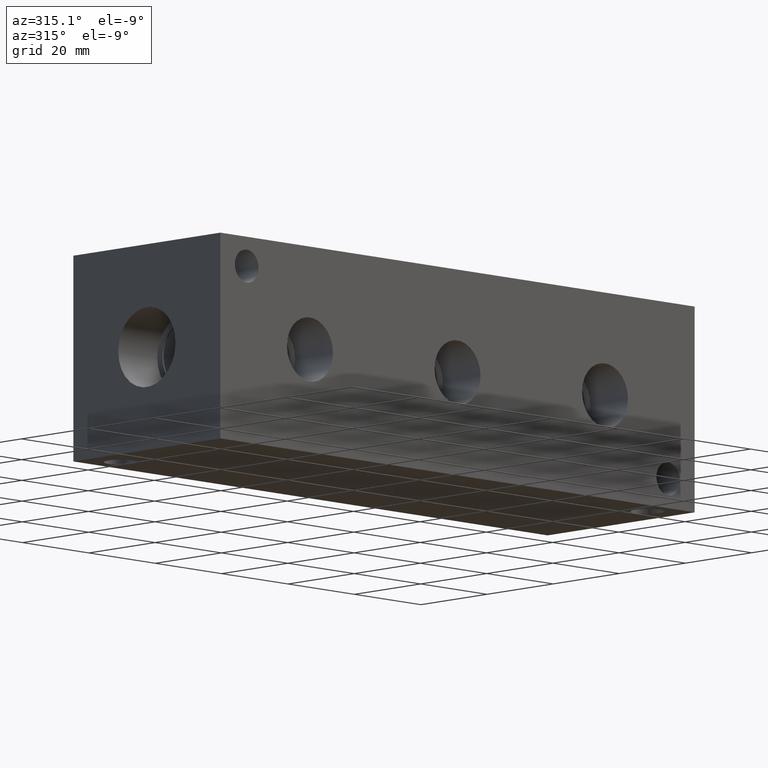
[diagram: clean part render]
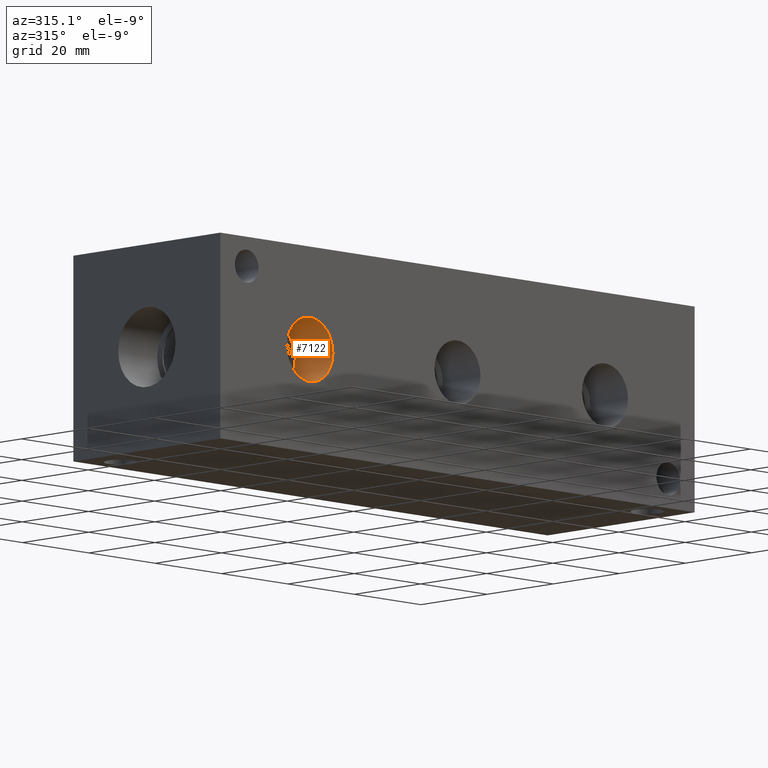
[diagram: same view with one face highlighted and labeled with its STEP entity id]
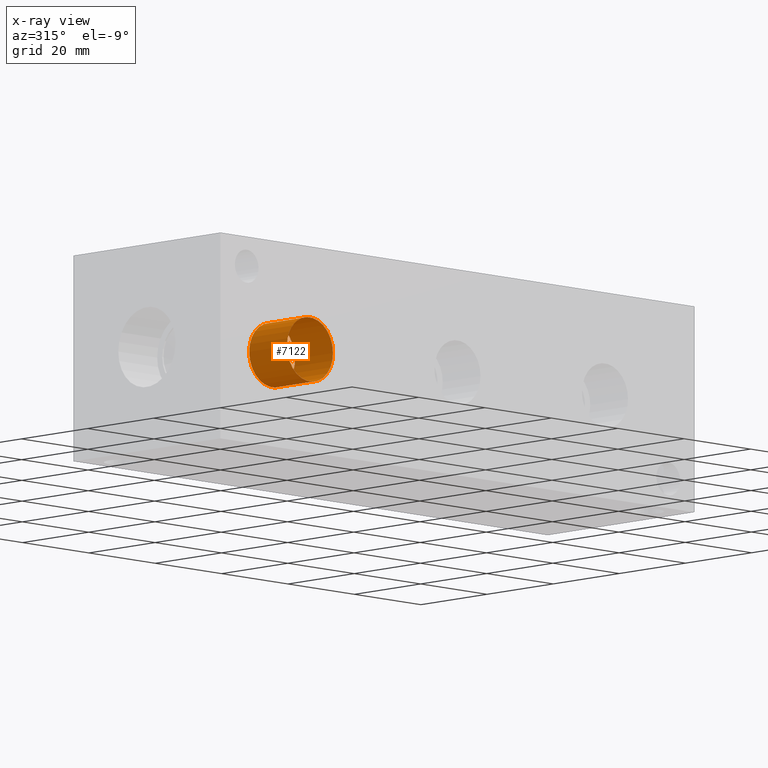
[diagram: x-ray of the same camera — body ghosted, the highlighted face saturated]
A machine part, auxiliary view. The second image highlights one B-rep face of the part: STEP entity #7122.
The next image is the same camera in x-ray: the body ghosted, the highlighted face saturated — about 0% of this face is hidden behind the body in this view.
In plain terms, the highlighted cylindrical surface (bore or boss wall) has radius 6.9342 mm, axis along (0, -1, 0).
Its self-contained STEP definition (entity closure, byte-faithful):
#24=CYLINDRICAL_SURFACE('',#7418,6.9342);
#73=CIRCLE('',#7415,6.9342);
#74=CIRCLE('',#7416,6.9342);
#76=CIRCLE('',#7419,6.9342);
#77=CIRCLE('',#7420,6.9342);
#725=FACE_OUTER_BOUND('',#1123,.T.);
#1123=EDGE_LOOP('',(#6187,#6188,#6189,#6190,#6191,#6192));
#1845=LINE('',#12034,#2546);
#2546=VECTOR('',#8669,6.9342);
#3385=VERTEX_POINT('',#12023);
#3386=VERTEX_POINT('',#12024);
#3388=VERTEX_POINT('',#12030);
#3389=VERTEX_POINT('',#12031);
#4336=EDGE_CURVE('',#3385,#3386,#73,.T.);
#4337=EDGE_CURVE('',#3386,#3385,#74,.T.);
#4339=EDGE_CURVE('',#3388,#3389,#76,.T.);
#4340=EDGE_CURVE('',#3389,#3388,#77,.T.);
#4341=EDGE_CURVE('',#3389,#3386,#1845,.T.);
#6187=ORIENTED_EDGE('',*,*,#4339,.F.);
#6188=ORIENTED_EDGE('',*,*,#4340,.F.);
#6189=ORIENTED_EDGE('',*,*,#4341,.T.);
#6190=ORIENTED_EDGE('',*,*,#4336,.F.);
#6191=ORIENTED_EDGE('',*,*,#4337,.F.);
#6192=ORIENTED_EDGE('',*,*,#4341,.F.);
#7122=ADVANCED_FACE('',(#725),#24,.F.);
#7415=AXIS2_PLACEMENT_3D('',#12025,#8657,#8658);
#7416=AXIS2_PLACEMENT_3D('',#12026,#8659,#8660);
#7418=AXIS2_PLACEMENT_3D('',#12029,#8663,#8664);
#7419=AXIS2_PLACEMENT_3D('',#12032,#8665,#8666);
#7420=AXIS2_PLACEMENT_3D('',#12033,#8667,#8668);
#8657=DIRECTION('center_axis',(0.,-1.,0.));
#8658=DIRECTION('ref_axis',(1.,0.,0.));
#8659=DIRECTION('center_axis',(0.,-1.,0.));
#8660=DIRECTION('ref_axis',(1.,0.,0.));
#8663=DIRECTION('center_axis',(0.,-1.,0.));
#8664=DIRECTION('ref_axis',(1.,0.,0.));
#8665=DIRECTION('center_axis',(0.,1.,0.));
#8666=DIRECTION('ref_axis',(1.,0.,0.));
#8667=DIRECTION('center_axis',(0.,1.,0.));
#8668=DIRECTION('ref_axis',(1.,0.,0.));
#8669=DIRECTION('',(0.,1.,0.));
#12023=CARTESIAN_POINT('',(33.909,11.4046,22.225));
#12024=CARTESIAN_POINT('',(20.0406,11.4046,22.225));
#12025=CARTESIAN_POINT('Origin',(26.9748,11.4046,22.225));
#12026=CARTESIAN_POINT('Origin',(26.9748,11.4046,22.225));
#12029=CARTESIAN_POINT('Origin',(26.9748,5.7023,22.225));
#12030=CARTESIAN_POINT('',(33.909,0.,22.225));
#12031=CARTESIAN_POINT('',(20.0406,0.,22.225));
#12032=CARTESIAN_POINT('Origin',(26.9748,0.,22.225));
#12033=CARTESIAN_POINT('Origin',(26.9748,0.,22.225));
#12034=CARTESIAN_POINT('',(20.0406,5.7023,22.225));